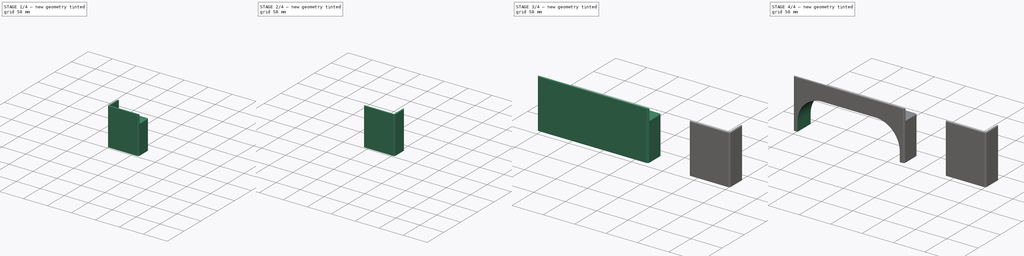
[diagram: build sequence overview — one tinted view per stage of 4, left to right]
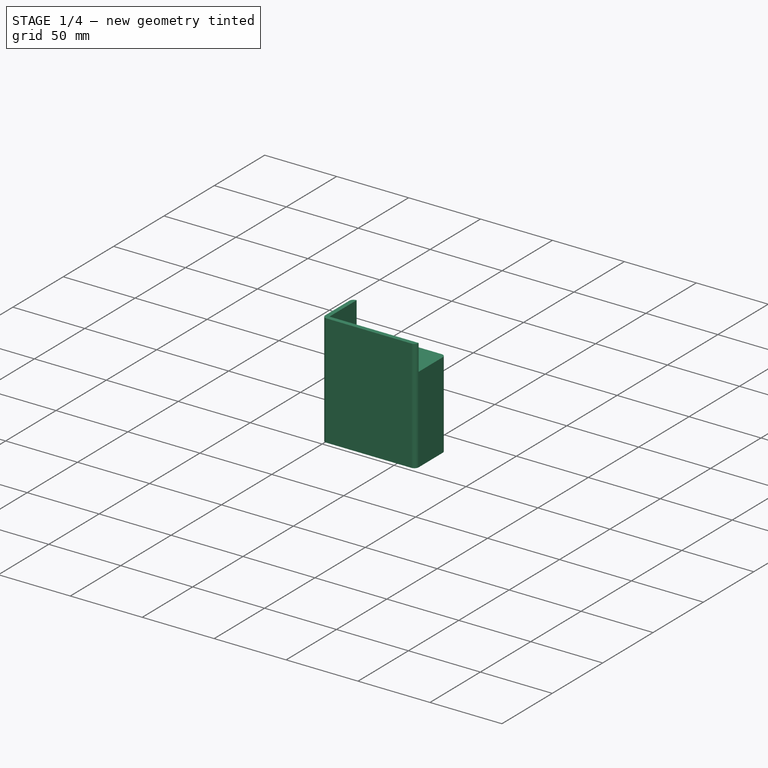
[diagram: stage 1 of 4 — iso view after this stage's code; geometry added in this stage tinted green]
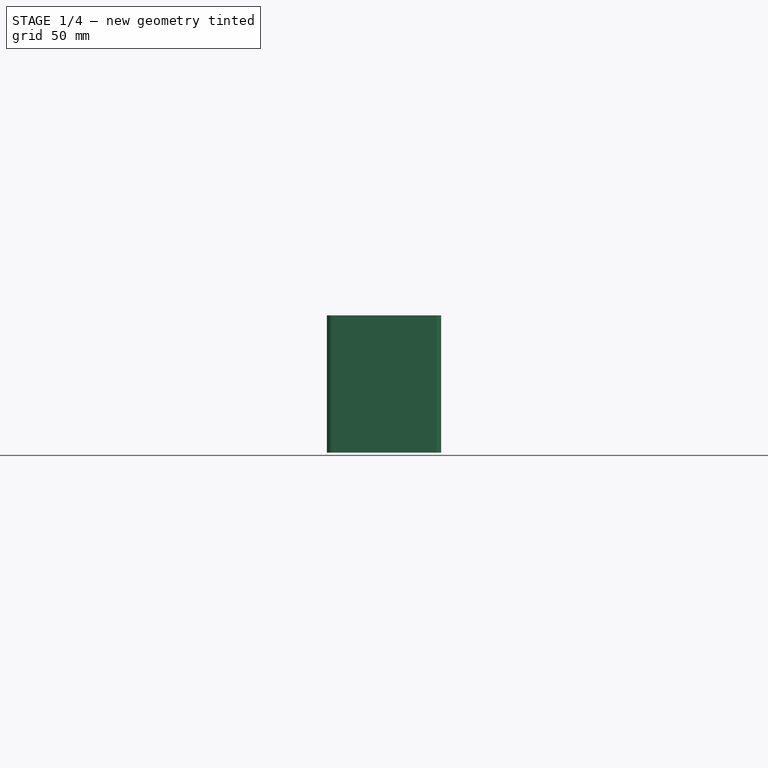
[diagram: stage 1 of 4 — front view after this stage's code; geometry added in this stage tinted green]
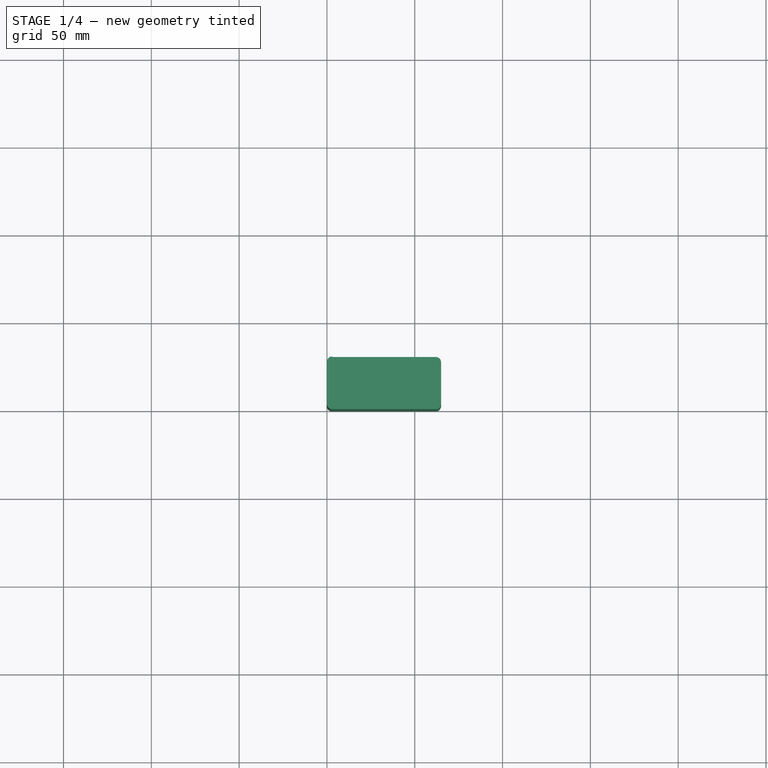
[diagram: stage 1 of 4 — top view after this stage's code; geometry added in this stage tinted green]
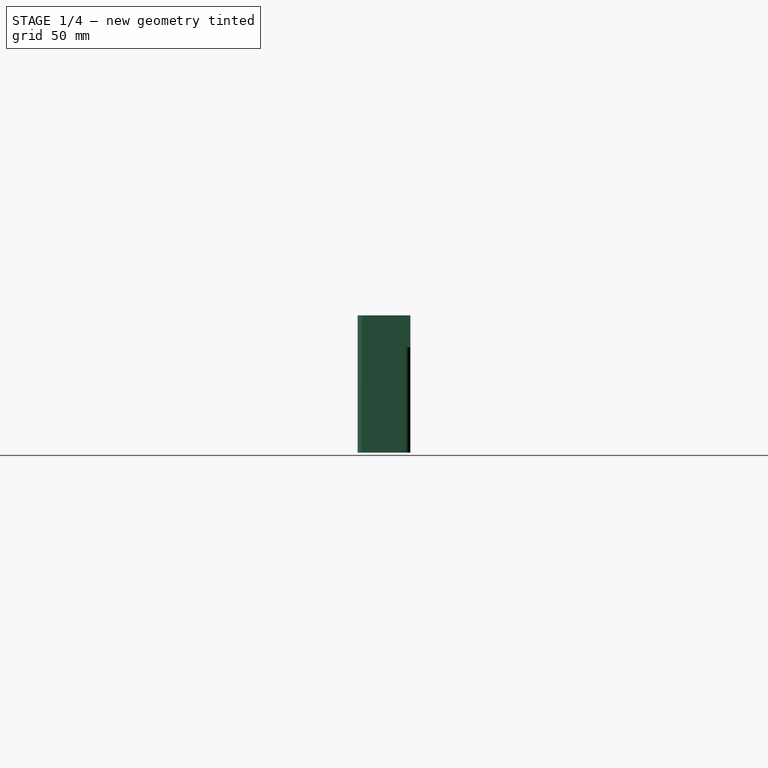
[diagram: stage 1 of 4 — right view after this stage's code; geometry added in this stage tinted green]
FCSTD DOCUMENT  (FreeCAD 0.21R33771 (Git))
Label: monitorstandfeet
License: All rights reserved
LicenseURL: http://en.wikipedia.org/wiki/All_rights_reserved
objects: Sketcher::SketchObject×9, PartDesign::Pocket×7, PartDesign::Pad×2, PartDesign::Body×2, Spreadsheet::Sheet×1, Part::Mirroring×1
note: 30 computed .brp shape members not serialized (recipe doc carries the construction recipe); baked Part::Feature solids carry a one-line shape summary decoded from their .brp

FEATURE [Spreadsheet::Sheet] Spreadsheet
  cells = A1='Board Width; B1(boardWidth)=301; A2='Board Thickness; B2(boardThickness)=18.1; A3='Corner Foot Width; B3(cornerFootWidth)=30; A4='Corner Foot Length; B4(cornerFootLength)=65; A5='Wall Thickness; B5(wallThickness)==filletRadius; A6='Screw Hole Diameter; B6(screwHoleDiameter)=4.5; A7='Screw Hole Thickness; B7(screwHoleThickness)=6; A8='Fillet Radius; B8(filletRadius)=3; A9='Gap Height; B9(gapHeight)=60; A10='Center Piece Length; B10(centerPieceLength)==boardWidth - 2 * cornerFootLength + 2 * wallThickness
FEATURE [Sketcher::SketchObject] Sketch  label="Base"
  FullyConstrained = true
  MapMode = 5
  Support = -> [XY_Plane]
  expr: Constraints[20] = Spreadsheet.filletRadius
  expr: Constraints[21] = Spreadsheet.cornerFootLength
  expr: Constraints[22] = Spreadsheet.cornerFootWidth
  sketch-geometry (10):
    g0: ArcOfCircle CenterX=3 CenterY=3 CenterZ=0 NormalX=0 NormalY=0 NormalZ=1 AngleXU=0 Radius=3 StartAngle=3.14159 EndAngle=4.71239
    g1: LineSegment StartX=0 StartY=3 StartZ=0 EndX=0 EndY=27 EndZ=0
    g2: ArcOfCircle CenterX=3 CenterY=27 CenterZ=0 NormalX=0 NormalY=0 NormalZ=1 AngleXU=0 Radius=3 StartAngle=1.5708 EndAngle=3.14159
    g3: LineSegment StartX=3 StartY=30 StartZ=0 EndX=62 EndY=30 EndZ=0
    g4: ArcOfCircle CenterX=62 CenterY=27 CenterZ=0 NormalX=0 NormalY=0 NormalZ=1 AngleXU=0 Radius=3 StartAngle=0 EndAngle=1.5708
    g5: LineSegment StartX=65 StartY=27 StartZ=0 EndX=65 EndY=3 EndZ=0
    g6: ArcOfCircle CenterX=62 CenterY=3 CenterZ=0 NormalX=0 NormalY=0 NormalZ=1 AngleXU=0 Radius=3 StartAngle=4.71239 EndAngle=6.28319
    g7: LineSegment StartX=62 StartY=0 StartZ=0 EndX=3 EndY=0 EndZ=0
    g8: GeomPoint X=0 Y=0 Z=0
    g9: GeomPoint X=65 Y=30 Z=0
  constraints (23):
    c: Tangent(g0,g1) = 1.5708
    c: Tangent(g1,g2) = 1.5708
    c: Tangent(g2,g3) = 1.5708
    c: Tangent(g3,g4) = 1.5708
    c: Tangent(g4,g5) = 1.5708
    c: Tangent(g5,g6) = 1.5708
    c: Tangent(g6,g7) = 1.5708
    c: Tangent(g7,g0) = 1.5708
    c: Horizontal(g3)
    c: Horizontal(g7)
    c: Vertical(g1)
    c: Vertical(g5)
    c: Equal(g0,g2)
    c: Equal(g2,g4)
    c: Equal(g4,g6)
    c: PointOnObject(g8,g1)
    c: PointOnObject(g8,g7)
    c: PointOnObject(g9,g3)
    c: PointOnObject(g9,g5)
    c: Coincident(g8,g-1)
    c: DistanceY(g4,g3) = 3
    c: DistanceX(g0,g5) = 65
    c: DistanceY(g0,g2) = 30
FEATURE [PartDesign::Pad] Pad  label="Base001"
  Direction = (0,0,1)
  Length = 78.1
  Length2 = 10
  Profile = -> Sketch
  ReferenceAxis = -> Sketch [N_Axis]
  Type = 0
  expr: Length = Spreadsheet.gapHeight + Spreadsheet.boardThickness
FEATURE [Sketcher::SketchObject] Sketch001  label="PlateCutout"
  AttachmentOffset = pos=(0,0,60) rot=(0,0,1;0rad)
  FullyConstrained = true
  MapMode = 5
  Placement = pos=(0,0,60) rot=(0,0,1;0rad)
  Support = -> [XY_Plane]
  expr: .AttachmentOffset.Base.z = Spreadsheet.gapHeight
  expr: Constraints[10] = Spreadsheet.cornerFootLength
  expr: Constraints[11] = Spreadsheet.cornerFootWidth
  expr: Constraints[8] = Spreadsheet.wallThickness
  expr: Constraints[9] = Spreadsheet.wallThickness
  sketch-geometry (4):
    g0: LineSegment StartX=3 StartY=33 StartZ=0 EndX=68 EndY=33 EndZ=0
    g1: LineSegment StartX=68 StartY=33 StartZ=0 EndX=68 EndY=3 EndZ=0
    g2: LineSegment StartX=68 StartY=3 StartZ=0 EndX=3 EndY=3 EndZ=0
    g3: LineSegment StartX=3 StartY=3 StartZ=0 EndX=3 EndY=33 EndZ=0
  constraints (12):
    c: Coincident(g0,g1)
    c: Coincident(g1,g2)
    c: Coincident(g2,g3)
    c: Coincident(g3,g0)
    c: Horizontal(g0)
    c: Horizontal(g2)
    c: Vertical(g1)
    c: Vertical(g3)
    c: DistanceY(g-1,g2) = 3
    c: DistanceX(g-1,g2) = 3
    c: DistanceX(g0,g0) = 65
    c: DistanceY(g3,g3) = 30
FEATURE [PartDesign::Pocket] Pocket  label="PlateCutout001"
  BaseFeature = -> Pad
  Direction = (0,0,-1)
  Length = 5
  Length2 = 5
  Profile = -> Sketch001
  ReferenceAxis = -> Sketch001 [N_Axis]
  Reversed = true
  Type = 1
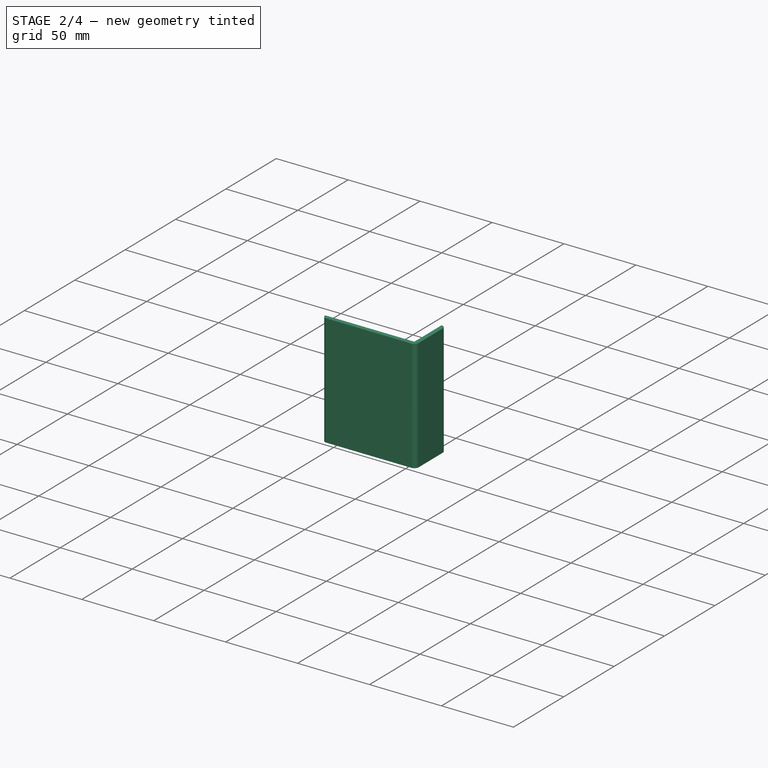
[diagram: stage 2 of 4 — iso view after this stage's code; geometry added in this stage tinted green]
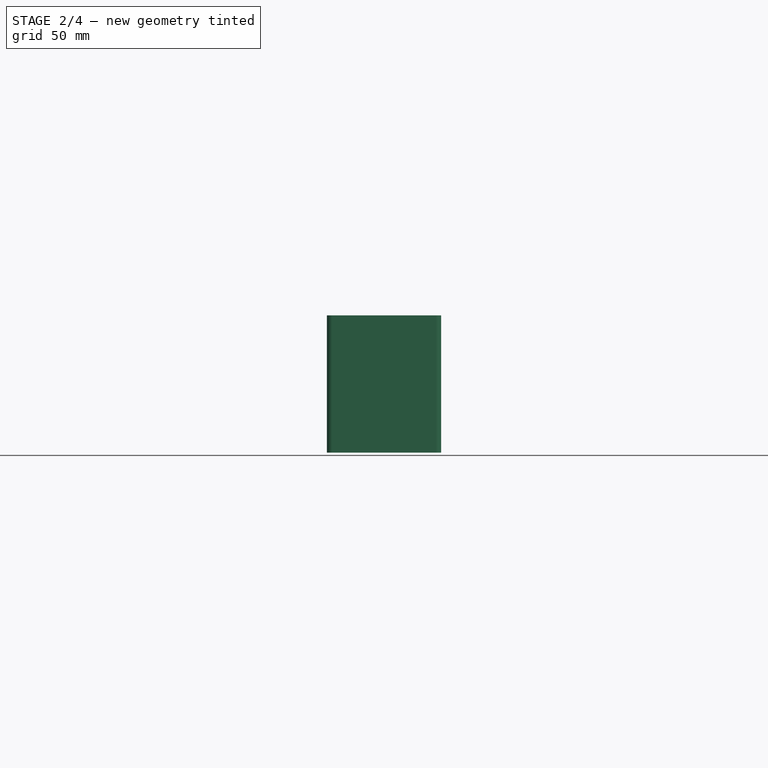
[diagram: stage 2 of 4 — front view after this stage's code; geometry added in this stage tinted green]
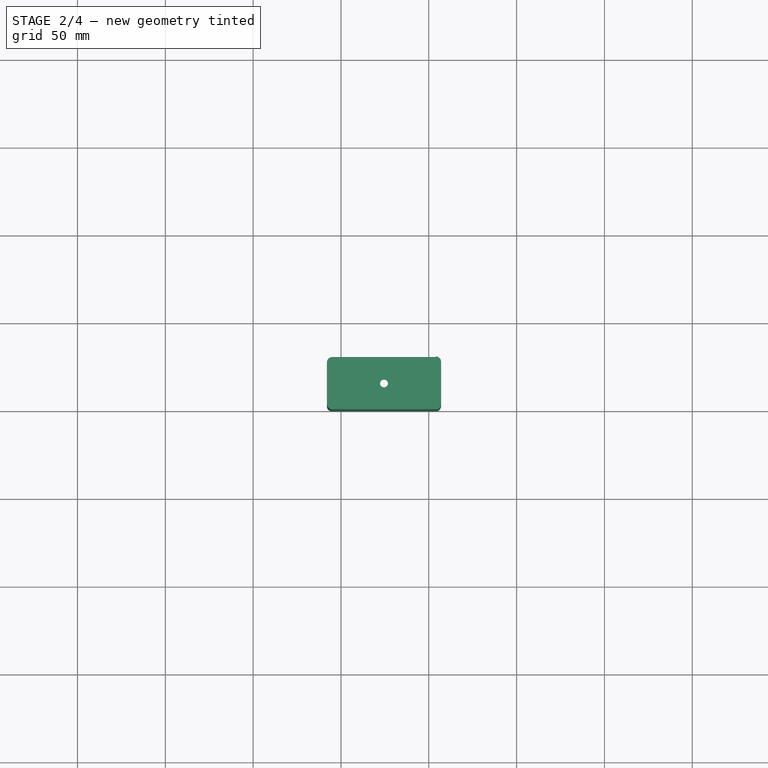
[diagram: stage 2 of 4 — top view after this stage's code; geometry added in this stage tinted green]
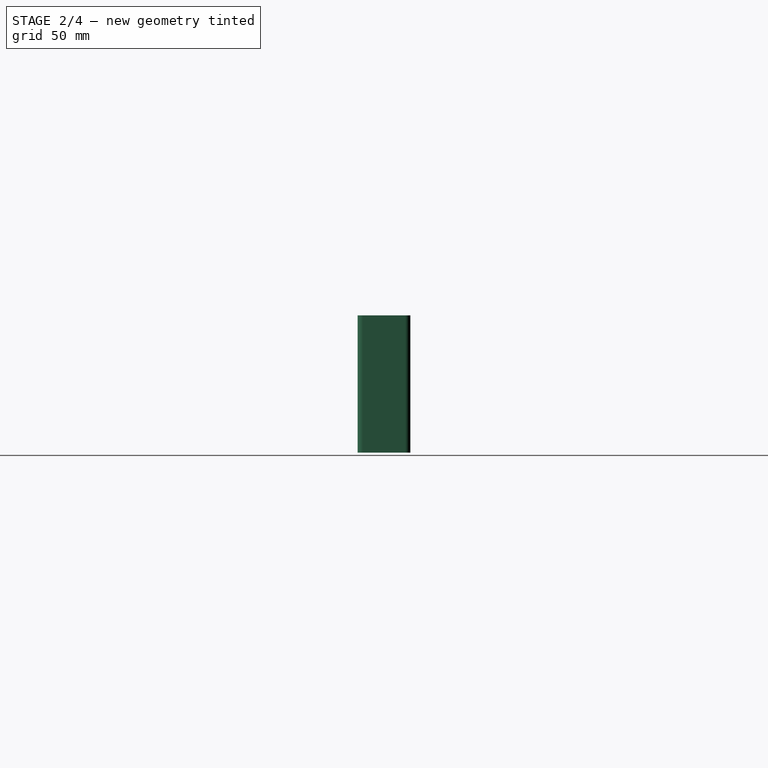
[diagram: stage 2 of 4 — right view after this stage's code; geometry added in this stage tinted green]
FEATURE [Sketcher::SketchObject] Sketch002  label="ScrewHole"
  FullyConstrained = true
  MapMode = 5
  Support = -> [XY_Plane]
  expr: Constraints[15] = Spreadsheet.screwHoleDiameter
  expr: Constraints[19] = Spreadsheet.cornerFootLength
  expr: Constraints[7] = Spreadsheet.cornerFootWidth
  sketch-geometry (7):
    g0: LineSegment StartX=0 StartY=0 StartZ=0 EndX=65 EndY=0 EndZ=0
    g1: LineSegment StartX=0 StartY=30 StartZ=0 EndX=0 EndY=0 EndZ=0
    g2: LineSegment StartX=65 StartY=30 StartZ=0 EndX=32.5 EndY=30 EndZ=0
    g3: LineSegment StartX=32.5 StartY=30 StartZ=0 EndX=0 EndY=30 EndZ=0
    g4: LineSegment StartX=65 StartY=0 StartZ=0 EndX=65 EndY=15 EndZ=0
    g5: LineSegment StartX=65 StartY=15 StartZ=0 EndX=65 EndY=30 EndZ=0
    g6: Circle CenterX=32.5 CenterY=15 CenterZ=0 NormalX=0 NormalY=0 NormalZ=1 AngleXU=0 Radius=2.25
  constraints (20):
    c: Coincident(g0,g4)
    c: Coincident(g5,g2)
    c: Coincident(g3,g1)
    c: Coincident(g1,g0)
    c: Horizontal(g0)
    c: Vertical(g1)
    c: Coincident(g0,g-1)
    c: DistanceY(g4,g5) = 30
    c: Coincident(g2,g3)
    c: Horizontal(g2)
    c: Horizontal(g3)
    c: Coincident(g4,g5)
    c: Vertical(g4)
    c: Vertical(g5)
    c: Equal(g5,g4)
    c: Diameter(g6) = 4.5
    c: Horizontal(g6,g4)
    c: Vertical(g6,g2)
    c: Equal(g2,g3)
    c: DistanceX(g1,g2) = 65
FEATURE [PartDesign::Pocket] Pocket001  label="ScrewHole001"
  BaseFeature = -> Pocket
  Direction = (0,0,-1)
  Length = 5
  Length2 = 5
  Profile = -> Sketch002
  ReferenceAxis = -> Sketch002 [N_Axis]
  Reversed = true
  Type = 1
FEATURE [Sketcher::SketchObject] Sketch003  label="ScrewHoleOuter"
  FullyConstrained = true
  MapMode = 5
  Support = -> [XY_Plane]
  expr: Constraints[15] = Spreadsheet.screwHoleDiameter * 4
  expr: Constraints[19] = Spreadsheet.cornerFootLength
  expr: Constraints[7] = Spreadsheet.cornerFootWidth
  sketch-geometry (7):
    g0: LineSegment StartX=0 StartY=0 StartZ=0 EndX=65 EndY=0 EndZ=0
    g1: LineSegment StartX=0 StartY=30 StartZ=0 EndX=0 EndY=0 EndZ=0
    g2: LineSegment StartX=65 StartY=30 StartZ=0 EndX=32.5 EndY=30 EndZ=0
    g3: LineSegment StartX=32.5 StartY=30 StartZ=0 EndX=0 EndY=30 EndZ=0
    g4: LineSegment StartX=65 StartY=0 StartZ=0 EndX=65 EndY=15 EndZ=0
    g5: LineSegment StartX=65 StartY=15 StartZ=0 EndX=65 EndY=30 EndZ=0
    g6: Circle CenterX=32.5 CenterY=15 CenterZ=0 NormalX=0 NormalY=0 NormalZ=1 AngleXU=0 Radius=9
  constraints (20):
    c: Coincident(g0,g4)
    c: Coincident(g5,g2)
    c: Coincident(g3,g1)
    c: Coincident(g1,g0)
    c: Horizontal(g0)
    c: Vertical(g1)
    c: Coincident(g0,g-1)
    c: DistanceY(g4,g5) = 30
    c: Coincident(g2,g3)
    c: Horizontal(g2)
    c: Horizontal(g3)
    c: Coincident(g4,g5)
    c: Vertical(g4)
    c: Vertical(g5)
    c: Equal(g5,g4)
    c: Diameter(g6) = 18
    c: Horizontal(g6,g4)
    c: Vertical(g6,g2)
    c: Equal(g2,g3)
    c: DistanceX(g1,g2) = 65
FEATURE [PartDesign::Pocket] Pocket002  label="ScrewHoleOuter001"
  BaseFeature = -> Pocket001
  Direction = (0,0,-1)
  Length = 54
  Length2 = 5
  Profile = -> Sketch003
  ReferenceAxis = -> Sketch003 [N_Axis]
  Reversed = true
  Type = 0
  expr: Length = Spreadsheet.gapHeight - Spreadsheet.screwHoleThickness
FEATURE [PartDesign::Body] Body001  label="CenterPiece"
  Group = -> [Sketch004,Pad001,Sketch005,Pocket003,Sketch006,Pocket004,Sketch007,Pocket005,Sketch008,Pocket006]
  Origin = -> Origin001
  Placement = pos=(65,0,0) rot=(0,0,1;0rad)
  Tip = -> Pocket006
  expr: .Placement.Base.x = Spreadsheet.cornerFootLength
FEATURE [Part::Mirroring] Part__Mirroring  label="CornerFoot (Mirror #1)"
  Base = (3.8147e-06,15,44)
  Normal = (1,0,-1.19209e-07)
  Placement = pos=(307,0,0) rot=(0,0,1;0rad)
  Source = -> Body
  expr: .Placement.Base.x = Spreadsheet.cornerFootLength * 2 + Spreadsheet.centerPieceLength
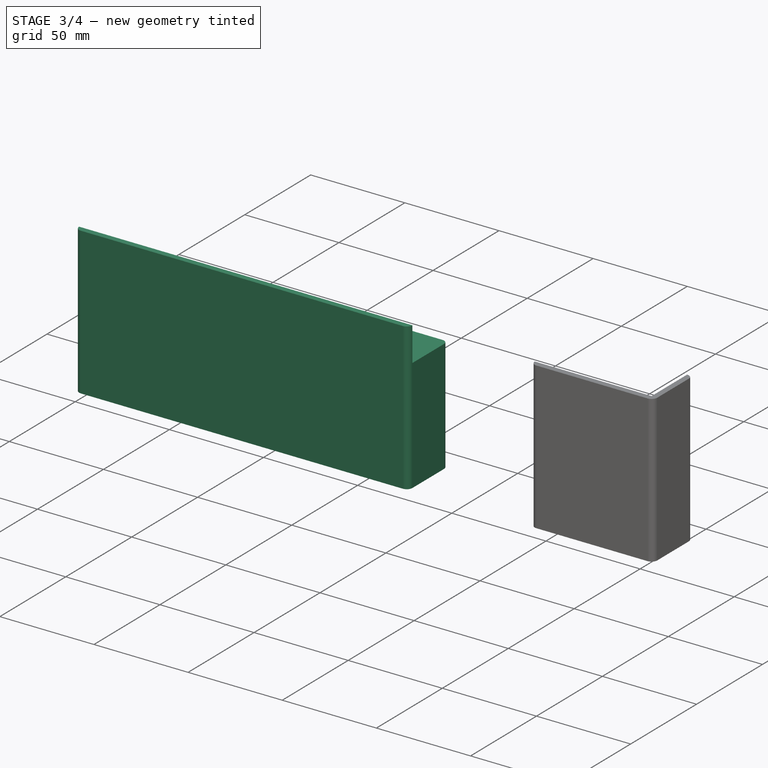
[diagram: stage 3 of 4 — iso view after this stage's code; geometry added in this stage tinted green]
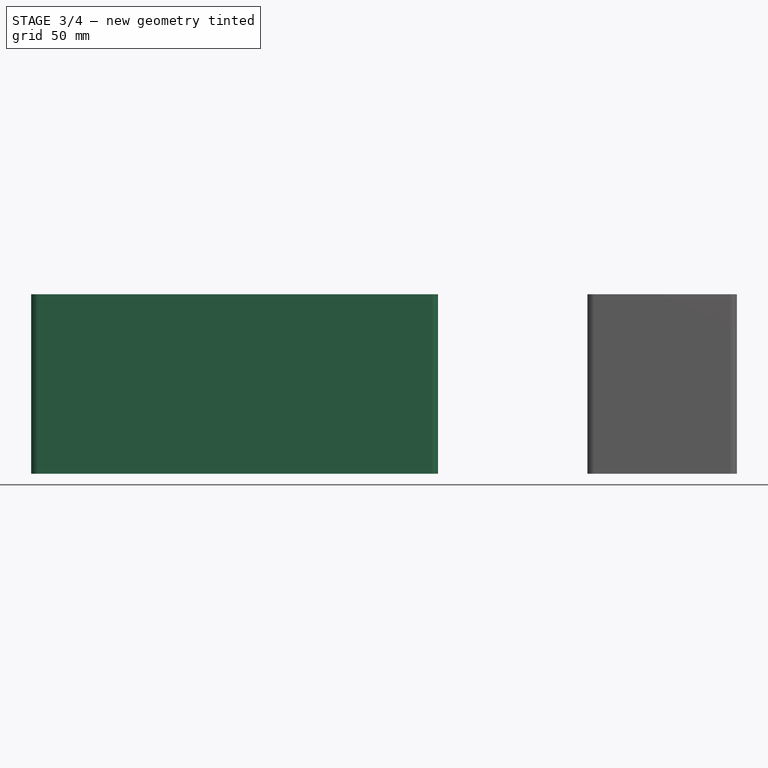
[diagram: stage 3 of 4 — front view after this stage's code; geometry added in this stage tinted green]
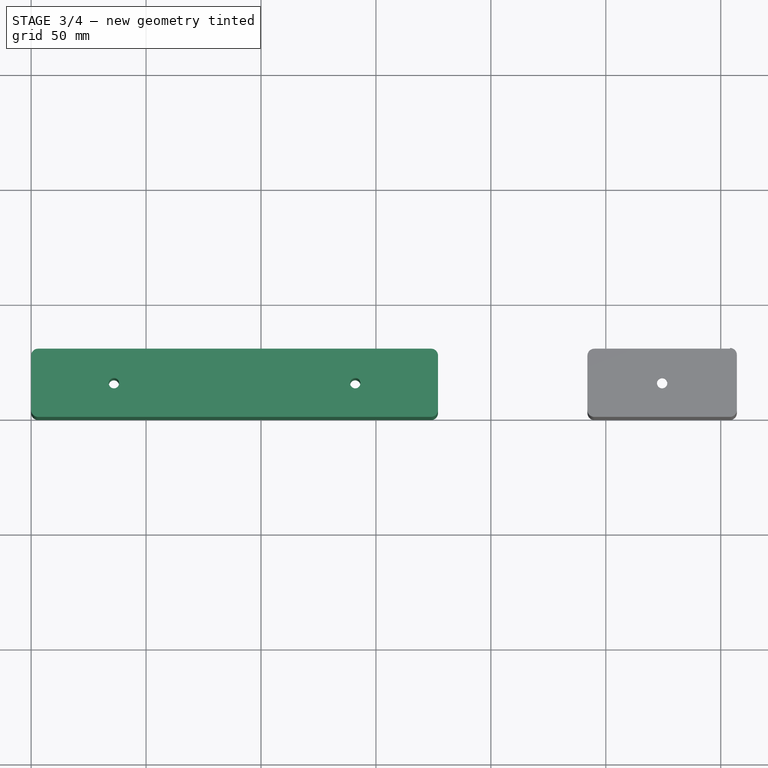
[diagram: stage 3 of 4 — top view after this stage's code; geometry added in this stage tinted green]
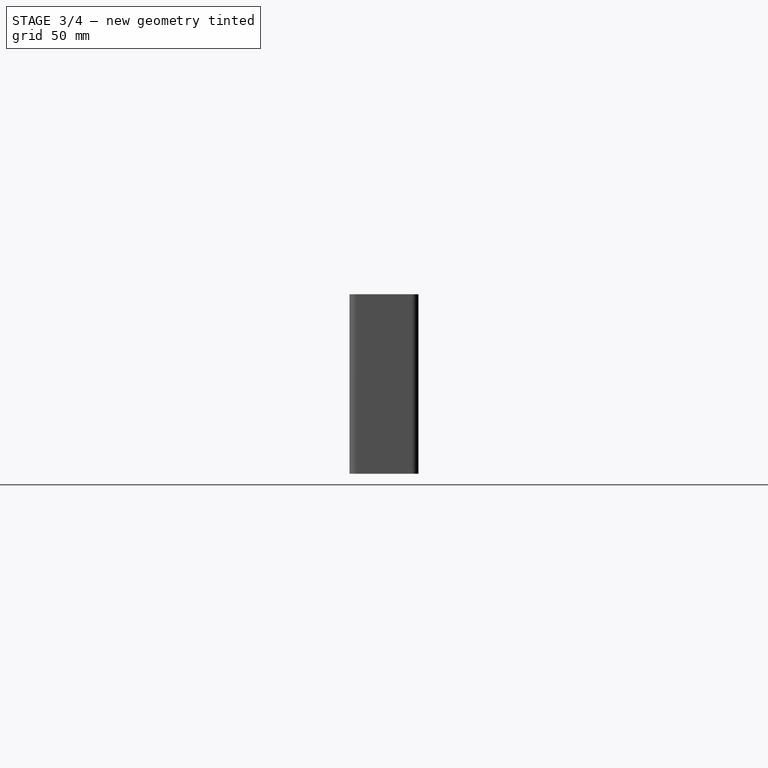
[diagram: stage 3 of 4 — right view after this stage's code; geometry added in this stage tinted green]
FEATURE [PartDesign::Body] Body  label="CornerFoot"
  Group = -> [Sketch,Pad,Sketch001,Pocket,Sketch002,Pocket001,Sketch003,Pocket002]
  Origin = -> Origin
  Tip = -> Pocket002
FEATURE [Sketcher::SketchObject] Sketch004  label="Base002"
  FullyConstrained = true
  MapMode = 5
  Support = -> [XY_Plane001]
  expr: Constraints[20] = Spreadsheet.cornerFootWidth
  expr: Constraints[21] = Spreadsheet.filletRadius
  expr: Constraints[22] = Spreadsheet.centerPieceLength
  sketch-geometry (10):
    g0: ArcOfCircle CenterX=3 CenterY=3 CenterZ=0 NormalX=0 NormalY=0 NormalZ=1 AngleXU=0 Radius=3 StartAngle=3.14159 EndAngle=4.71239
    g1: LineSegment StartX=0 StartY=3 StartZ=0 EndX=0 EndY=27 EndZ=0
    g2: ArcOfCircle CenterX=3 CenterY=27 CenterZ=0 NormalX=0 NormalY=0 NormalZ=1 AngleXU=0 Radius=3 StartAngle=1.5708 EndAngle=3.14159
    g3: LineSegment StartX=3 StartY=30 StartZ=0 EndX=174 EndY=30 EndZ=0
    g4: ArcOfCircle CenterX=174 CenterY=27 CenterZ=0 NormalX=0 NormalY=0 NormalZ=1 AngleXU=0 Radius=3 StartAngle=0 EndAngle=1.5708
    g5: LineSegment StartX=177 StartY=27 StartZ=0 EndX=177 EndY=3 EndZ=0
    g6: ArcOfCircle CenterX=174 CenterY=3 CenterZ=0 NormalX=0 NormalY=0 NormalZ=1 AngleXU=0 Radius=3 StartAngle=4.71239 EndAngle=6.28319
    g7: LineSegment StartX=174 StartY=0 StartZ=0 EndX=3 EndY=0 EndZ=0
    g8: GeomPoint X=0 Y=0 Z=0
    g9: GeomPoint X=177 Y=30 Z=0
  constraints (23):
    c: Tangent(g0,g1) = 1.5708
    c: Tangent(g1,g2) = 1.5708
    c: Tangent(g2,g3) = 1.5708
    c: Tangent(g3,g4) = 1.5708
    c: Tangent(g4,g5) = 1.5708
    c: Tangent(g5,g6) = 1.5708
    c: Tangent(g6,g7) = 1.5708
    c: Tangent(g7,g0) = 1.5708
    c: Horizontal(g3)
    c: Horizontal(g7)
    c: Vertical(g1)
    c: Vertical(g5)
    c: Equal(g0,g2)
    c: Equal(g2,g4)
    c: Equal(g4,g6)
    c: PointOnObject(g8,g1)
    c: PointOnObject(g8,g7)
    c: PointOnObject(g9,g3)
    c: PointOnObject(g9,g5)
    c: Coincident(g8,g-1)
    c: DistanceY(g6,g3) = 30
    c: DistanceY(g4,g3) = 3
    c: DistanceX(g0,g5) = 177
FEATURE [PartDesign::Pad] Pad001  label="Base003"
  Direction = (0,0,1)
  Length = 78.1
  Length2 = 10
  Profile = -> Sketch004
  ReferenceAxis = -> Sketch004 [N_Axis]
  Type = 0
  expr: Length = Spreadsheet.gapHeight + Spreadsheet.boardThickness
FEATURE [Sketcher::SketchObject] Sketch005  label="PlateCutout002"
  AttachmentOffset = pos=(0,0,60) rot=(0,0,1;0rad)
  FullyConstrained = true
  MapMode = 5
  Placement = pos=(0,0,60) rot=(0,0,1;0rad)
  Support = -> [XY_Plane001]
  expr: .AttachmentOffset.Base.z = Spreadsheet.gapHeight
  expr: Constraints[10] = Spreadsheet.centerPieceLength
  expr: Constraints[11] = Spreadsheet.cornerFootWidth
  expr: Constraints[9] = Spreadsheet.wallThickness
  sketch-geometry (4):
    g0: LineSegment StartX=0 StartY=33 StartZ=0 EndX=177 EndY=33 EndZ=0
    g1: LineSegment StartX=177 StartY=33 StartZ=0 EndX=177 EndY=3 EndZ=0
    g2: LineSegment StartX=177 StartY=3 StartZ=0 EndX=0 EndY=3 EndZ=0
    g3: LineSegment StartX=0 StartY=3 StartZ=0 EndX=0 EndY=33 EndZ=0
  constraints (12):
    c: Coincident(g0,g1)
    c: Coincident(g1,g2)
    c: Coincident(g2,g3)
    c: Coincident(g3,g0)
    c: Horizontal(g0)
    c: Horizontal(g2)
    c: Vertical(g1)
    c: Vertical(g3)
    c: PointOnObject(g0,g-2)
    c: DistanceY(g-1,g2) = 3
    c: DistanceX(g0,g0) = 177
    c: DistanceY(g1,g1) = 30
FEATURE [PartDesign::Pocket] Pocket003  label="PlateCutout003"
  BaseFeature = -> Pad001
  Direction = (0,0,-1)
  Length = 5
  Length2 = 5
  Profile = -> Sketch005
  ReferenceAxis = -> Sketch005 [N_Axis]
  Reversed = true
  Type = 1
FEATURE [Sketcher::SketchObject] Sketch006  label="ScrewHoles"
  FullyConstrained = true
  MapMode = 5
  Support = -> [XY_Plane001]
  expr: Constraints[16] = Spreadsheet.screwHoleDiameter * 8
  expr: Constraints[24] = Spreadsheet.screwHoleDiameter
  expr: Constraints[8] = Spreadsheet.centerPieceLength
  expr: Constraints[9] = Spreadsheet.cornerFootWidth
  sketch-geometry (9):
    g0: LineSegment StartX=0 StartY=0 StartZ=0 EndX=177 EndY=0 EndZ=0
    g1: LineSegment StartX=177 StartY=0 StartZ=0 EndX=177 EndY=30 EndZ=0
    g2: LineSegment StartX=177 StartY=30 StartZ=0 EndX=0 EndY=30 EndZ=0
    g3: LineSegment StartX=0 StartY=30 StartZ=0 EndX=0 EndY=15 EndZ=0
    g4: LineSegment StartX=0 StartY=15 StartZ=0 EndX=0 EndY=0 EndZ=0
    g5: LineSegment StartX=0 StartY=15 StartZ=0 EndX=36 EndY=15 EndZ=0
    g6: LineSegment StartX=177 StartY=15 StartZ=0 EndX=141 EndY=15 EndZ=0
    g7: Circle CenterX=36 CenterY=15 CenterZ=0 NormalX=0 NormalY=0 NormalZ=1 AngleXU=0 Radius=2.25
    g8: Circle CenterX=141 CenterY=15 CenterZ=0 NormalX=0 NormalY=0 NormalZ=1 AngleXU=0 Radius=2.25
  constraints (25):
    c: Coincident(g0,g1)
    c: Coincident(g1,g2)
    c: Coincident(g2,g3)
    c: Coincident(g4,g0)
    c: Horizontal(g0)
    c: Horizontal(g2)
    c: Vertical(g1)
    c: Coincident(g0,g-1)
    c: DistanceX(g0,g0) = 177
    c: DistanceY(g1,g1) = 30
    c: Coincident(g3,g4)
    c: Vertical(g3)
    c: Vertical(g4)
    c: Equal(g3,g4)
    c: Coincident(g5,g3)
    c: Horizontal(g5)
    c: DistanceX(g5,g5) = 36
    c: PointOnObject(g6,g1)
    c: Horizontal(g6)
    c: Horizontal(g6,g5)
    c: Equal(g6,g5)
    c: Coincident(g7,g5)
    c: Coincident(g8,g6)
    c: Equal(g8,g7)
    c: Diameter(g7) = 4.5
FEATURE [PartDesign::Pocket] Pocket004  label="ScrewHoles001"
  BaseFeature = -> Pocket003
  Direction = (0,0,-1)
  Length = 5
  Length2 = 5
  Profile = -> Sketch006
  ReferenceAxis = -> Sketch006 [N_Axis]
  Reversed = true
  Type = 1
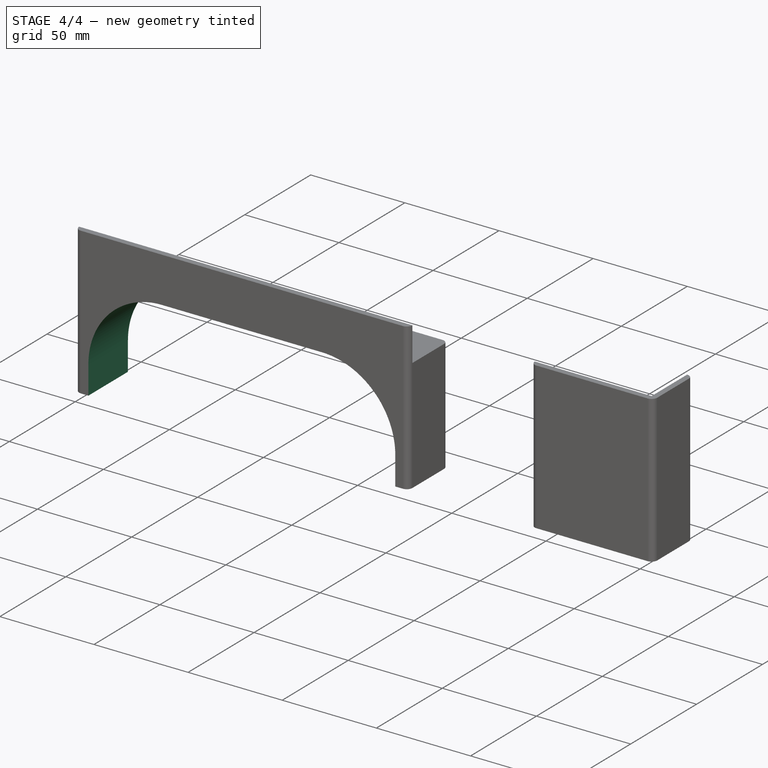
[diagram: stage 4 of 4 — iso view after this stage's code; geometry added in this stage tinted green]
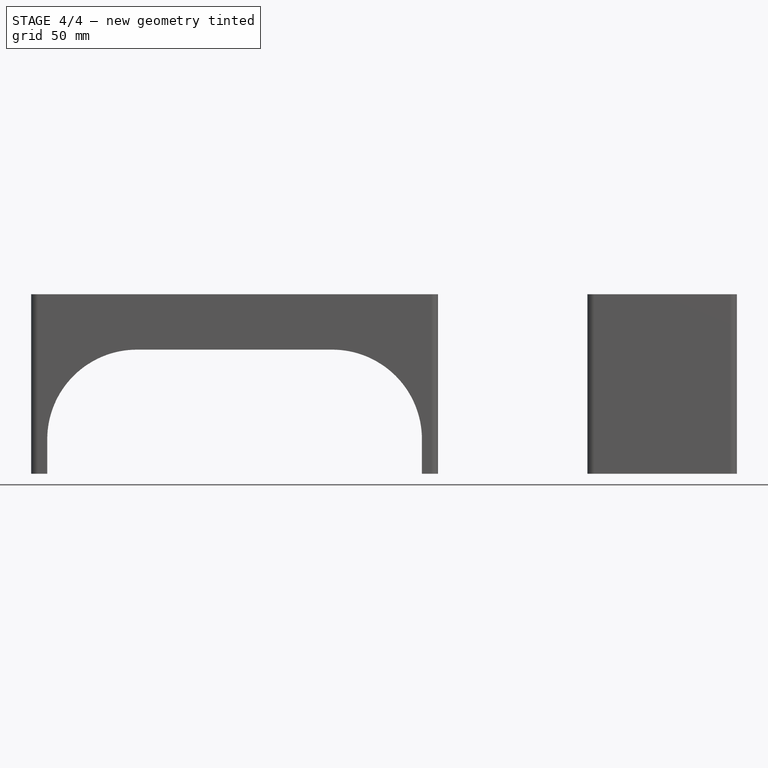
[diagram: stage 4 of 4 — front view after this stage's code; geometry added in this stage tinted green]
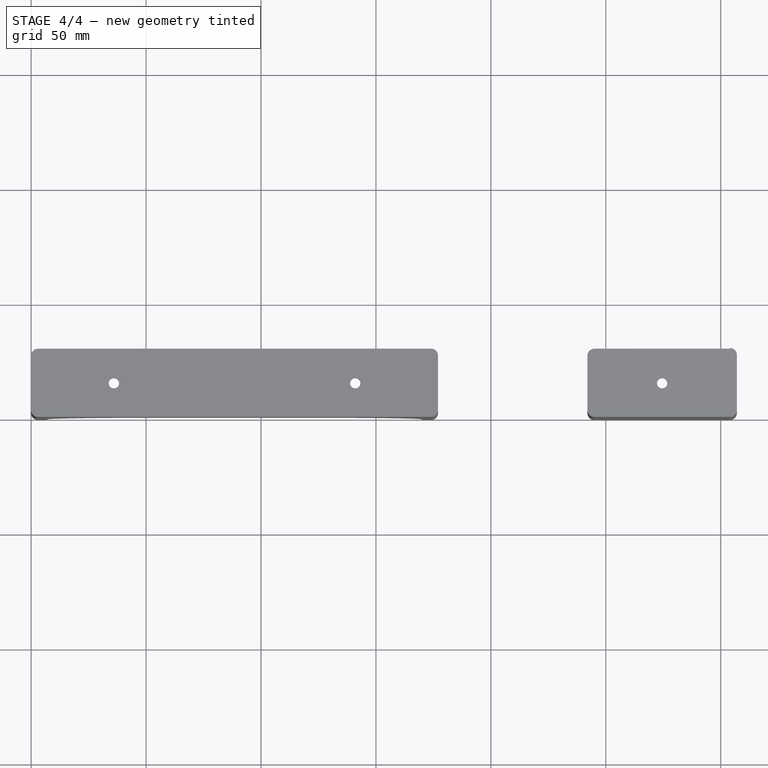
[diagram: stage 4 of 4 — top view after this stage's code; geometry added in this stage tinted green]
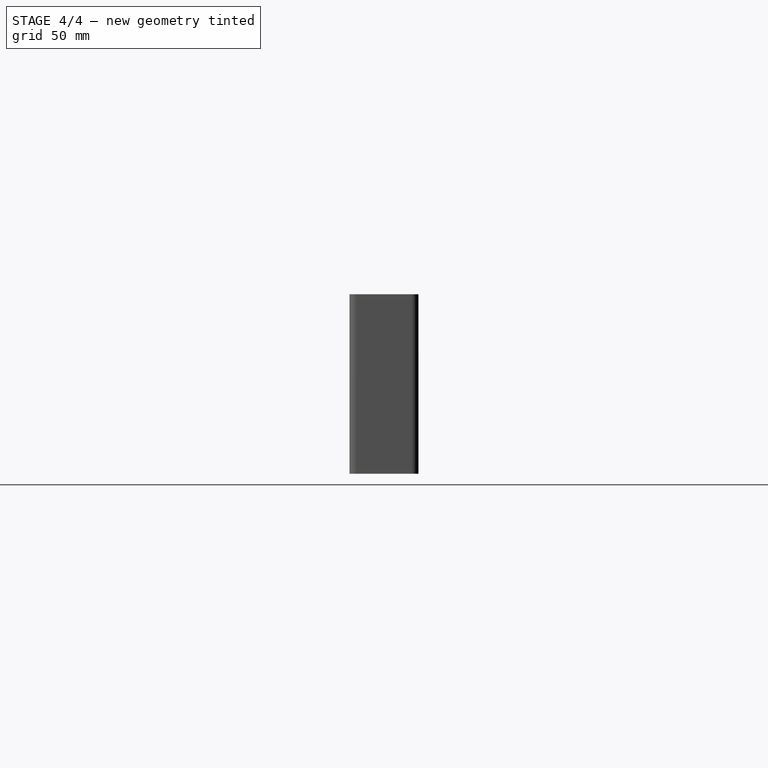
[diagram: stage 4 of 4 — right view after this stage's code; geometry added in this stage tinted green]
FEATURE [Sketcher::SketchObject] Sketch007  label="ScrewHolesOuter"
  FullyConstrained = true
  MapMode = 5
  Support = -> [XY_Plane001]
  expr: Constraints[16] = Spreadsheet.screwHoleDiameter * 8
  expr: Constraints[24] = Spreadsheet.screwHoleDiameter * 4
  expr: Constraints[8] = Spreadsheet.centerPieceLength
  expr: Constraints[9] = Spreadsheet.cornerFootWidth
  sketch-geometry (9):
    g0: LineSegment StartX=0 StartY=0 StartZ=0 EndX=177 EndY=0 EndZ=0
    g1: LineSegment StartX=177 StartY=0 StartZ=0 EndX=177 EndY=30 EndZ=0
    g2: LineSegment StartX=177 StartY=30 StartZ=0 EndX=0 EndY=30 EndZ=0
    g3: LineSegment StartX=0 StartY=30 StartZ=0 EndX=0 EndY=15 EndZ=0
    g4: LineSegment StartX=0 StartY=15 StartZ=0 EndX=0 EndY=0 EndZ=0
    g5: LineSegment StartX=0 StartY=15 StartZ=0 EndX=36 EndY=15 EndZ=0
    g6: LineSegment StartX=177 StartY=15 StartZ=0 EndX=141 EndY=15 EndZ=0
    g7: Circle CenterX=36 CenterY=15 CenterZ=0 NormalX=0 NormalY=0 NormalZ=1 AngleXU=0 Radius=9
    g8: Circle CenterX=141 CenterY=15 CenterZ=0 NormalX=0 NormalY=0 NormalZ=1 AngleXU=0 Radius=9
  constraints (25):
    c: Coincident(g0,g1)
    c: Coincident(g1,g2)
    c: Coincident(g2,g3)
    c: Coincident(g4,g0)
    c: Horizontal(g0)
    c: Horizontal(g2)
    c: Vertical(g1)
    c: Coincident(g0,g-1)
    c: DistanceX(g0,g0) = 177
    c: DistanceY(g1,g1) = 30
    c: Coincident(g3,g4)
    c: Vertical(g3)
    c: Vertical(g4)
    c: Equal(g3,g4)
    c: Coincident(g5,g3)
    c: Horizontal(g5)
    c: DistanceX(g5,g5) = 36
    c: PointOnObject(g6,g1)
    c: Horizontal(g6)
    c: Horizontal(g6,g5)
    c: Equal(g6,g5)
    c: Coincident(g7,g5)
    c: Coincident(g8,g6)
    c: Equal(g8,g7)
    c: Diameter(g7) = 18
FEATURE [PartDesign::Pocket] Pocket005  label="ScrewHolesOuter001"
  BaseFeature = -> Pocket004
  Direction = (0,0,-1)
  Length = 54
  Length2 = 5
  Profile = -> Sketch007
  ReferenceAxis = -> Sketch007 [N_Axis]
  Reversed = true
  Type = 0
  expr: Length = Spreadsheet.gapHeight - Spreadsheet.screwHoleThickness
FEATURE [Sketcher::SketchObject] Sketch008  label="Cutout"
  FullyConstrained = true
  MapMode = 5
  Placement = pos=(0,0,0) rot=(1,0,0;1.5708rad)
  Support = -> [XZ_Plane001]
  expr: Constraints[11] = Spreadsheet.screwHoleDiameter * 8
  expr: Constraints[21] = Spreadsheet.gapHeight - Spreadsheet.screwHoleThickness
  expr: Constraints[30] = Spreadsheet.filletRadius + 4
  expr: Constraints[31] = Spreadsheet.centerPieceLength
  expr: Constraints[4] = Spreadsheet.cornerFootWidth
  sketch-geometry (14):
    g0: LineSegment StartX=177 StartY=0 StartZ=0 EndX=177 EndY=30 EndZ=0
    g1: LineSegment StartX=177 StartY=30 StartZ=0 EndX=0 EndY=30 EndZ=0
    g2: LineSegment StartX=0 StartY=30 StartZ=0 EndX=0 EndY=15 EndZ=0
    g3: LineSegment StartX=0 StartY=15 StartZ=0 EndX=0 EndY=0 EndZ=0
    g4: LineSegment StartX=0 StartY=15 StartZ=0 EndX=36 EndY=15 EndZ=0
    g5: LineSegment StartX=177 StartY=15 StartZ=0 EndX=141 EndY=15 EndZ=0
    g6: LineSegment StartX=7 StartY=0 StartZ=0 EndX=7 EndY=15 EndZ=0
    g7: LineSegment StartX=170 StartY=0 StartZ=0 EndX=170 EndY=15 EndZ=0
    g8: LineSegment StartX=46 StartY=54 StartZ=0 EndX=131 EndY=54 EndZ=0
    g9: ArcOfCircle CenterX=46 CenterY=15 CenterZ=0 NormalX=0 NormalY=0 NormalZ=1 AngleXU=0 Radius=39 StartAngle=1.5708 EndAngle=3.14159
    g10: ArcOfCircle CenterX=131 CenterY=15 CenterZ=0 NormalX=0 NormalY=0 NormalZ=1 AngleXU=0 Radius=39 StartAngle=0 EndAngle=1.5708
    g11: LineSegment StartX=7 StartY=0 StartZ=0 EndX=170 EndY=0 EndZ=0
    g12: LineSegment StartX=7 StartY=0 StartZ=0 EndX=0 EndY=0 EndZ=0
    g13: LineSegment StartX=170 StartY=0 StartZ=0 EndX=177 EndY=0 EndZ=0
  constraints (41):
    c: Coincident(g0,g1)
    c: Coincident(g1,g2)
    c: Horizontal(g1)
    c: Vertical(g0)
    c: DistanceY(g0,g0) = 30
    c: Coincident(g2,g3)
    c: Vertical(g2)
    c: Vertical(g3)
    c: Equal(g2,g3)
    c: Coincident(g4,g2)
    c: Horizontal(g4)
    c: DistanceX(g4,g4) = 36
    c: PointOnObject(g5,g0)
    c: Horizontal(g5)
    c: Horizontal(g5,g4)
    c: Equal(g5,g4)
    c: Horizontal(g8)
    c: Tangent(g8,g9) = 1.5708
    c: Tangent(g8,g10) = 1.5708
    c: Coincident(g11,g6)
    c: Coincident(g11,g7)
    c: DistanceY(g7,g8) = 54
    c: Horizontal(g9,g4)
    c: Horizontal(g10,g5)
    c: Vertical(g6)
    c: Vertical(g7)
    c: Coincident(g6,g9)
    c: Coincident(g7,g10)
    c: Horizontal(g6,g4)
    c: Horizontal(g7,g5)
    c: DistanceX(g3,g6) = 7
    c: DistanceX(g1,g1) = 177
    c: Coincident(g12,g6)
    c: Coincident(g12,g3)
    c: Horizontal(g12)
    c: Coincident(g13,g7)
    c: Coincident(g13,g0)
    c: Horizontal(g13)
    c: Equal(g13,g12)
    c: Coincident(g3,g-1)
    c: PointOnObject(g7,g-1)
FEATURE [PartDesign::Pocket] Pocket006  label="Cutout001"
  BaseFeature = -> Pocket005
  Direction = (0,1,2e-16)
  Length = 5
  Length2 = 5
  Profile = -> Sketch008
  ReferenceAxis = -> Sketch008 [N_Axis]
  Type = 1
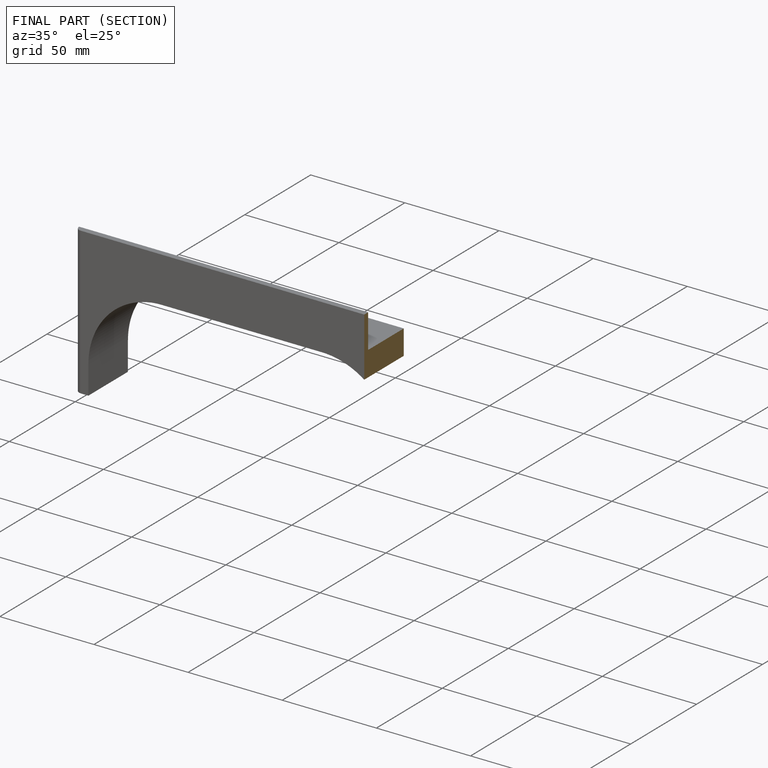
[diagram: finished part — half-section view (interior)]
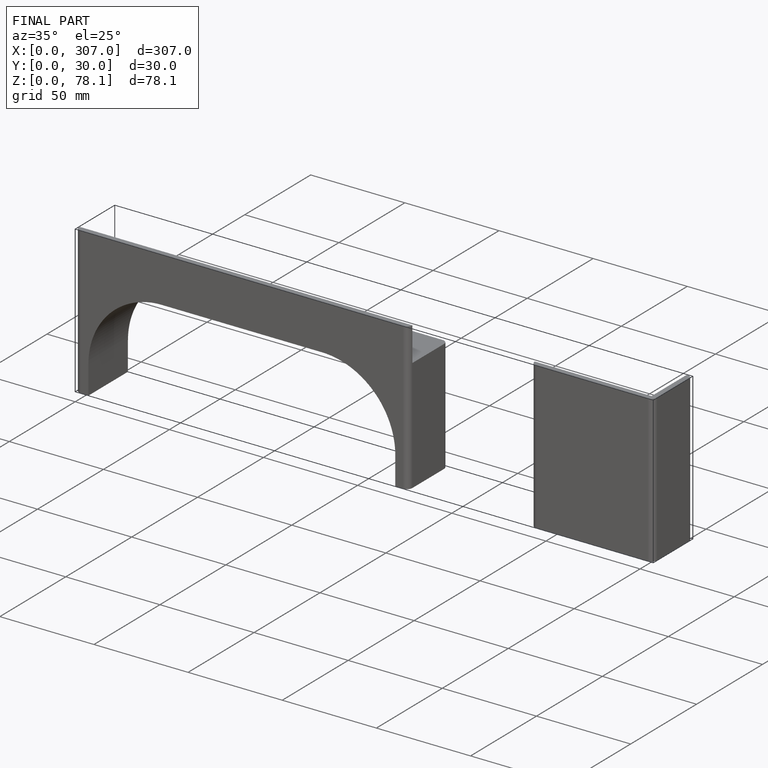
[diagram: finished part — iso view with bounding-box wireframe]
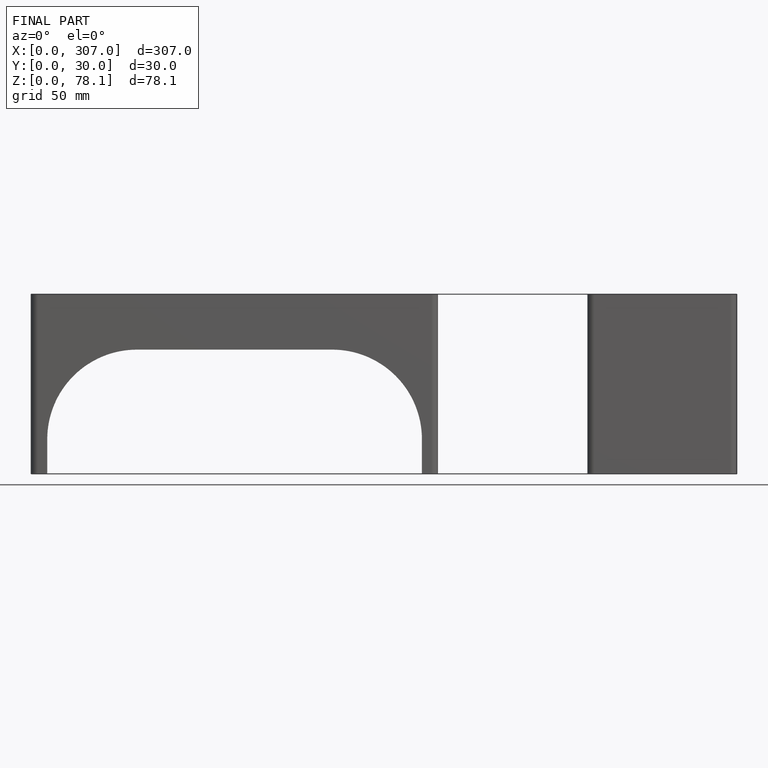
[diagram: finished part — front view with bounding-box wireframe]
